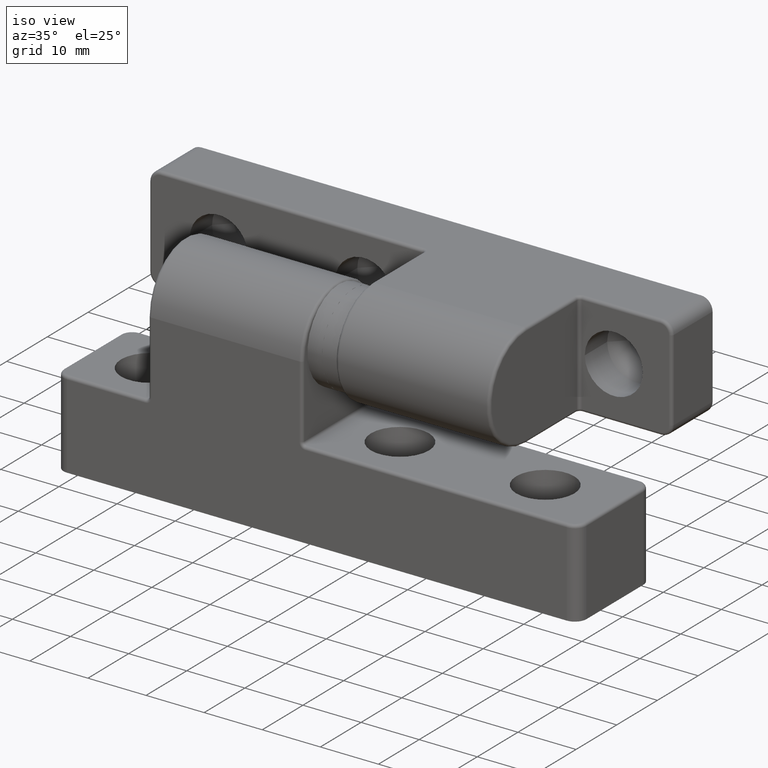
[diagram: clean part render]
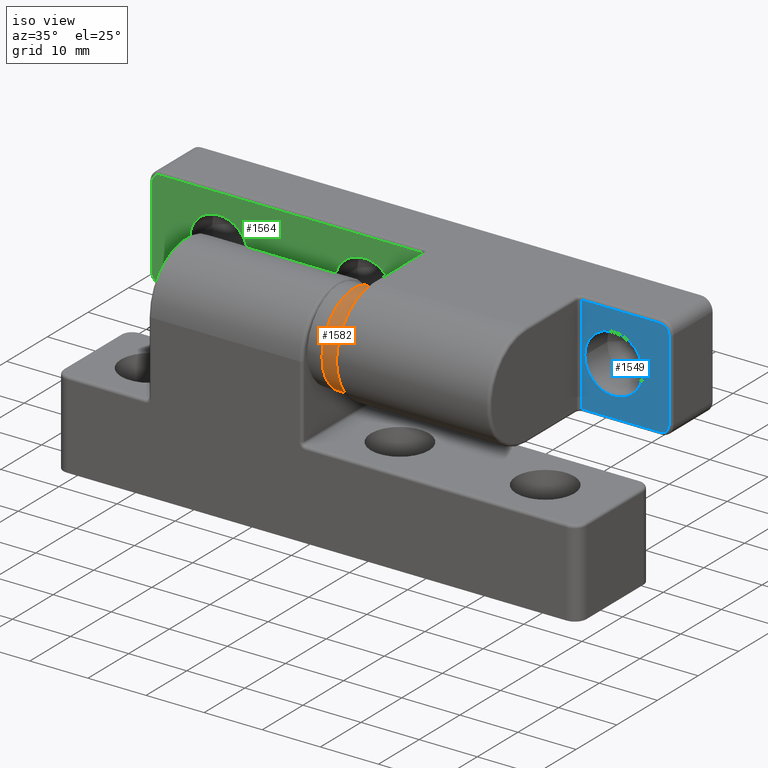
[diagram: same view with three faces highlighted in distinct colors, each labeled with its STEP entity id]
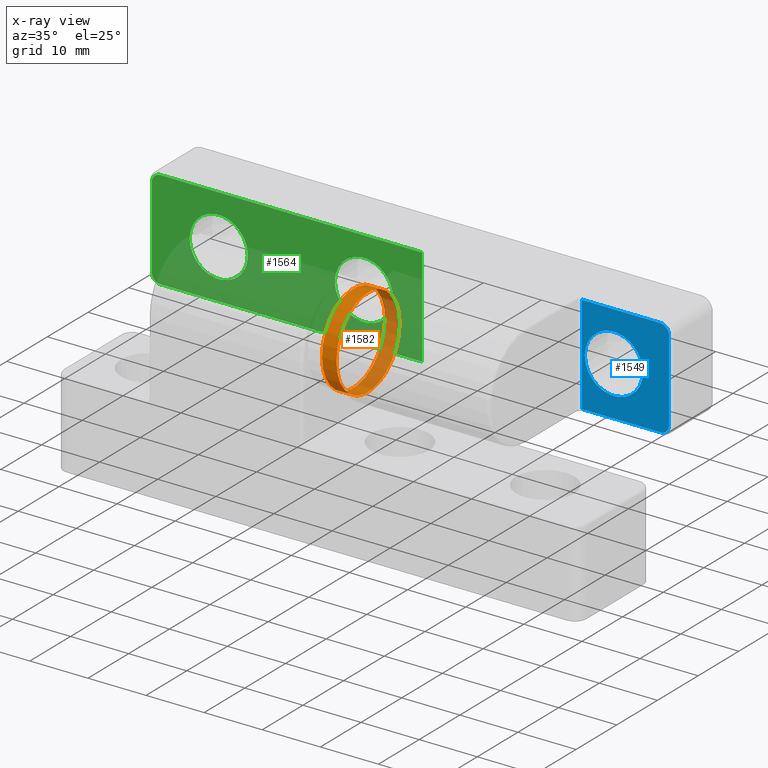
[diagram: x-ray of the same camera — body ghosted, the three highlighted faces saturated]
A machine part, iso view with three faces highlighted in distinct colors.
The next image is the same camera in x-ray (body ghosted, the three faces saturated) — at least one of them is partly hidden behind the body in this view.
Their STEP definitions:

[orange] entity #1582 — the highlighted cylindrical surface (bore or boss wall) has radius 7.75 mm, axis along (-1, 0, -0).
#89=FACE_BOUND('',#577,.T.);
#322=CYLINDRICAL_SURFACE('',#1823,7.75);
#427=FACE_OUTER_BOUND('',#576,.T.);
#576=EDGE_LOOP('',(#1452));
#577=EDGE_LOOP('',(#1453));
#708=CIRCLE('',#1824,7.75);
#709=CIRCLE('',#1825,7.75);
#844=VERTEX_POINT('',#2836);
#845=VERTEX_POINT('',#2838);
#1048=EDGE_CURVE('',#844,#844,#708,.T.);
#1049=EDGE_CURVE('',#845,#845,#709,.T.);
#1452=ORIENTED_EDGE('',*,*,#1048,.F.);
#1453=ORIENTED_EDGE('',*,*,#1049,.F.);
#1582=ADVANCED_FACE('',(#427,#89),#322,.T.);
#1823=AXIS2_PLACEMENT_3D('',#2835,#2374,#2375);
#1824=AXIS2_PLACEMENT_3D('',#2837,#2376,#2377);
#1825=AXIS2_PLACEMENT_3D('',#2839,#2378,#2379);
#2374=DIRECTION('center_axis',(1.,0.,0.));
#2375=DIRECTION('ref_axis',(0.,0.,1.));
#2376=DIRECTION('center_axis',(-1.,0.,0.));
#2377=DIRECTION('ref_axis',(0.,0.,1.));
#2378=DIRECTION('center_axis',(1.,0.,0.));
#2379=DIRECTION('ref_axis',(0.,0.,1.));
#2835=CARTESIAN_POINT('Origin',(-2.5,0.,24.));
#2836=CARTESIAN_POINT('',(-2.5,9.49101269339199E-16,16.25));
#2837=CARTESIAN_POINT('Origin',(-2.5,0.,24.));
#2838=CARTESIAN_POINT('',(4.44089209850063E-15,9.49101269339199E-16,16.25));
#2839=CARTESIAN_POINT('Origin',(4.44089209850063E-15,0.,24.));

[blue] entity #1549 — the highlighted planar face has unit normal (-0, -1, -0).
#71=FACE_BOUND('',#526,.T.);
#108=PLANE('',#1753);
#156=LINE('',#2647,#232);
#158=LINE('',#2659,#234);
#160=LINE('',#2668,#236);
#162=LINE('',#2671,#238);
#232=VECTOR('',#2144,13.5);
#234=VECTOR('',#2158,14.);
#236=VECTOR('',#2170,13.5);
#238=VECTOR('',#2174,17.);
#394=FACE_OUTER_BOUND('',#525,.T.);
#525=EDGE_LOOP('',(#1324,#1325,#1326,#1327,#1328,#1329));
#526=EDGE_LOOP('',(#1330));
#658=CIRCLE('',#1729,1.5);
#662=CIRCLE('',#1735,1.5);
#671=CIRCLE('',#1754,5.);
#780=VERTEX_POINT('',#2626);
#786=VERTEX_POINT('',#2638);
#789=VERTEX_POINT('',#2645);
#791=VERTEX_POINT('',#2651);
#793=VERTEX_POINT('',#2657);
#795=VERTEX_POINT('',#2663);
#809=VERTEX_POINT('',#2715);
#959=EDGE_CURVE('',#789,#786,#156,.T.);
#962=EDGE_CURVE('',#791,#789,#658,.T.);
#965=EDGE_CURVE('',#793,#791,#158,.T.);
#968=EDGE_CURVE('',#795,#793,#662,.T.);
#970=EDGE_CURVE('',#780,#795,#160,.T.);
#972=EDGE_CURVE('',#786,#780,#162,.T.);
#995=EDGE_CURVE('',#809,#809,#671,.T.);
#1324=ORIENTED_EDGE('',*,*,#959,.F.);
#1325=ORIENTED_EDGE('',*,*,#962,.F.);
#1326=ORIENTED_EDGE('',*,*,#965,.F.);
#1327=ORIENTED_EDGE('',*,*,#968,.F.);
#1328=ORIENTED_EDGE('',*,*,#970,.F.);
#1329=ORIENTED_EDGE('',*,*,#972,.F.);
#1330=ORIENTED_EDGE('',*,*,#995,.T.);
#1549=ADVANCED_FACE('',(#394,#71),#108,.T.);
#1729=AXIS2_PLACEMENT_3D('',#2653,#2150,#2151);
#1735=AXIS2_PLACEMENT_3D('',#2665,#2164,#2165);
#1753=AXIS2_PLACEMENT_3D('',#2714,#2218,#2219);
#1754=AXIS2_PLACEMENT_3D('',#2716,#2220,#2221);
#2144=DIRECTION('',(1.,0.,0.));
#2150=DIRECTION('center_axis',(0.,0.,-1.));
#2151=DIRECTION('ref_axis',(-0.707106781186547,0.707106781186548,0.));
#2158=DIRECTION('',(0.,1.,0.));
#2164=DIRECTION('center_axis',(0.,0.,-1.));
#2165=DIRECTION('ref_axis',(-0.707106781186546,-0.707106781186549,0.));
#2170=DIRECTION('',(-1.,0.,0.));
#2174=DIRECTION('',(0.,-1.,0.));
#2218=DIRECTION('center_axis',(0.,0.,1.));
#2219=DIRECTION('ref_axis',(1.,0.,0.));
#2220=DIRECTION('center_axis',(0.,0.,-1.));
#2221=DIRECTION('ref_axis',(1.,0.,0.));
#2626=CARTESIAN_POINT('',(-29.5,-8.5,10.));
#2638=CARTESIAN_POINT('',(-29.5,8.5,10.));
#2645=CARTESIAN_POINT('',(-43.,8.5,10.));
#2647=CARTESIAN_POINT('',(22.5,8.5,10.));
#2651=CARTESIAN_POINT('',(-44.5,7.,10.));
#2653=CARTESIAN_POINT('Origin',(-43.,7.,10.));
#2657=CARTESIAN_POINT('',(-44.5,-7.,10.));
#2659=CARTESIAN_POINT('',(-44.5,4.5,10.));
#2663=CARTESIAN_POINT('',(-43.,-8.5,10.));
#2665=CARTESIAN_POINT('Origin',(-43.,-7.,10.));
#2668=CARTESIAN_POINT('',(-22.5,-8.5,10.));
#2671=CARTESIAN_POINT('',(-29.5,2.55396882394919E-16,10.));
#2714=CARTESIAN_POINT('Origin',(0.,0.,10.));
#2715=CARTESIAN_POINT('',(-30.,0.,10.));
#2716=CARTESIAN_POINT('Origin',(-35.,0.,10.));

[green] entity #1564 — the highlighted planar face has unit normal (-0, -1, -0).
#72=FACE_BOUND('',#542,.T.);
#73=FACE_BOUND('',#543,.T.);
#111=PLANE('',#1788);
#178=LINE('',#2737,#254);
#180=LINE('',#2749,#256);
#182=LINE('',#2757,#258);
#186=LINE('',#2772,#262);
#254=VECTOR('',#2246,45.);
#256=VECTOR('',#2260,14.);
#258=VECTOR('',#2272,45.);
#262=VECTOR('',#2292,17.);
#409=FACE_OUTER_BOUND('',#541,.T.);
#541=EDGE_LOOP('',(#1393,#1394,#1395,#1396,#1397,#1398));
#542=EDGE_LOOP('',(#1399));
#543=EDGE_LOOP('',(#1400));
#681=CIRCLE('',#1769,1.5);
#685=CIRCLE('',#1775,1.5);
#691=CIRCLE('',#1789,5.);
#692=CIRCLE('',#1790,5.);
#812=VERTEX_POINT('',#2722);
#814=VERTEX_POINT('',#2728);
#817=VERTEX_POINT('',#2735);
#819=VERTEX_POINT('',#2741);
#821=VERTEX_POINT('',#2747);
#822=VERTEX_POINT('',#2752);
#827=VERTEX_POINT('',#2781);
#828=VERTEX_POINT('',#2783);
#1004=EDGE_CURVE('',#817,#812,#178,.T.);
#1007=EDGE_CURVE('',#819,#817,#681,.T.);
#1010=EDGE_CURVE('',#821,#819,#180,.T.);
#1013=EDGE_CURVE('',#822,#821,#685,.T.);
#1015=EDGE_CURVE('',#814,#822,#182,.T.);
#1023=EDGE_CURVE('',#812,#814,#186,.T.);
#1028=EDGE_CURVE('',#827,#827,#691,.T.);
#1029=EDGE_CURVE('',#828,#828,#692,.T.);
#1393=ORIENTED_EDGE('',*,*,#1004,.F.);
#1394=ORIENTED_EDGE('',*,*,#1007,.F.);
#1395=ORIENTED_EDGE('',*,*,#1010,.F.);
#1396=ORIENTED_EDGE('',*,*,#1013,.F.);
#1397=ORIENTED_EDGE('',*,*,#1015,.F.);
#1398=ORIENTED_EDGE('',*,*,#1023,.F.);
#1399=ORIENTED_EDGE('',*,*,#1028,.T.);
#1400=ORIENTED_EDGE('',*,*,#1029,.T.);
#1564=ADVANCED_FACE('',(#409,#72,#73),#111,.T.);
#1769=AXIS2_PLACEMENT_3D('',#2743,#2252,#2253);
#1775=AXIS2_PLACEMENT_3D('',#2754,#2266,#2267);
#1788=AXIS2_PLACEMENT_3D('',#2780,#2301,#2302);
#1789=AXIS2_PLACEMENT_3D('',#2782,#2303,#2304);
#1790=AXIS2_PLACEMENT_3D('',#2784,#2305,#2306);
#2246=DIRECTION('',(-1.,0.,0.));
#2252=DIRECTION('center_axis',(0.,0.,-1.));
#2253=DIRECTION('ref_axis',(0.707106781186547,-0.707106781186548,0.));
#2260=DIRECTION('',(0.,-1.,0.));
#2266=DIRECTION('center_axis',(0.,0.,-1.));
#2267=DIRECTION('ref_axis',(0.707106781186546,0.707106781186549,0.));
#2272=DIRECTION('',(1.,0.,0.));
#2292=DIRECTION('',(0.,1.,0.));
#2301=DIRECTION('center_axis',(0.,0.,1.));
#2302=DIRECTION('ref_axis',(1.,0.,0.));
#2303=DIRECTION('center_axis',(0.,0.,-1.));
#2304=DIRECTION('ref_axis',(1.,0.,0.));
#2305=DIRECTION('center_axis',(0.,0.,-1.));
#2306=DIRECTION('ref_axis',(1.,0.,0.));
#2722=CARTESIAN_POINT('',(-2.,-8.5,10.));
#2728=CARTESIAN_POINT('',(-2.,8.5,10.));
#2735=CARTESIAN_POINT('',(43.,-8.5,10.));
#2737=CARTESIAN_POINT('',(-22.5,-8.5,10.));
#2741=CARTESIAN_POINT('',(44.5,-7.,10.));
#2743=CARTESIAN_POINT('Origin',(43.,-7.,10.));
#2747=CARTESIAN_POINT('',(44.5,7.,10.));
#2749=CARTESIAN_POINT('',(44.5,-4.5,10.));
#2752=CARTESIAN_POINT('',(43.,8.5,10.));
#2754=CARTESIAN_POINT('Origin',(43.,7.,10.));
#2757=CARTESIAN_POINT('',(22.5,8.5,10.));
#2772=CARTESIAN_POINT('',(-2.,2.55396882394919E-16,10.));
#2780=CARTESIAN_POINT('Origin',(0.,0.,10.));
#2781=CARTESIAN_POINT('',(38.,0.,10.));
#2782=CARTESIAN_POINT('Origin',(33.,0.,10.));
#2783=CARTESIAN_POINT('',(13.,0.,10.));
#2784=CARTESIAN_POINT('Origin',(8.,0.,10.));